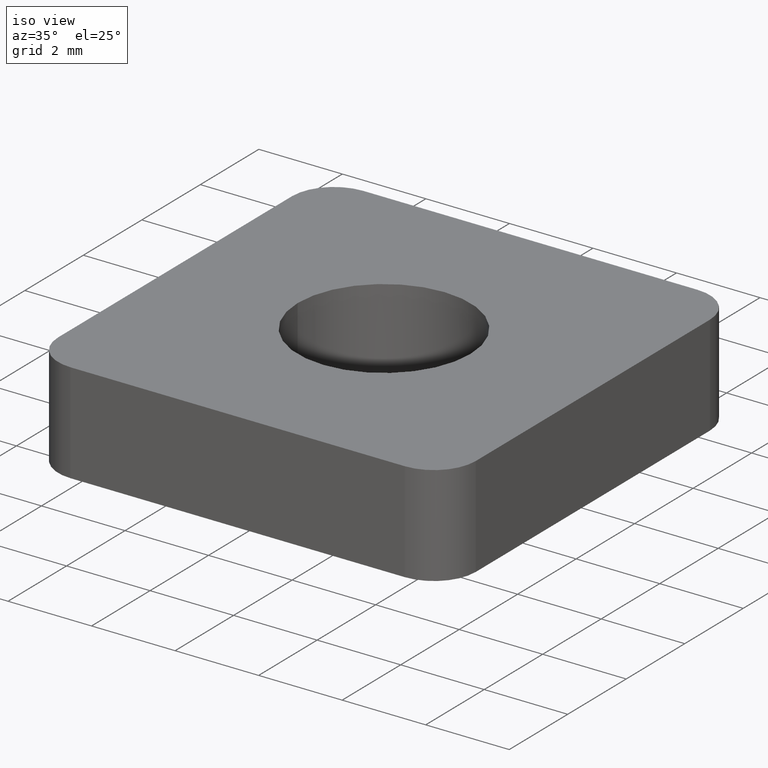
[diagram: clean part render]
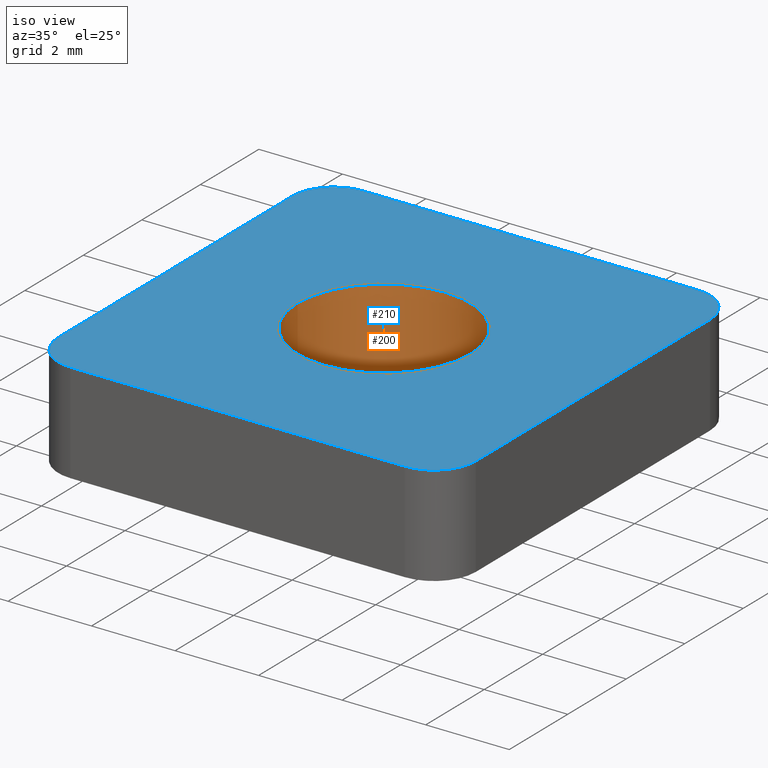
[diagram: same view with the hole feature highlighted: cylindrical wall and planar end face, labeled with their STEP entity ids]
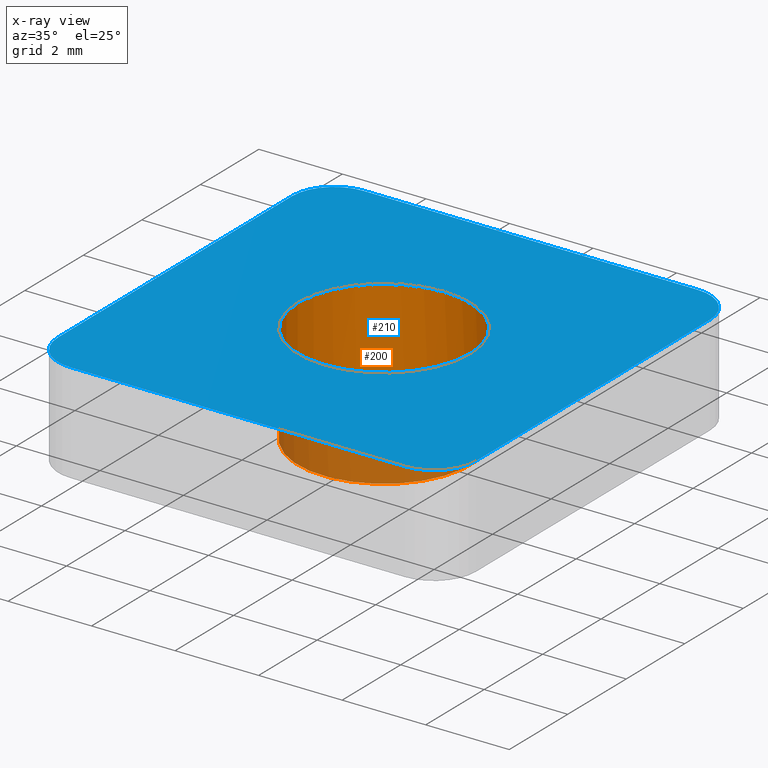
[diagram: x-ray of the same camera — body ghosted, the hole faces saturated]
A machine part, iso view. The highlighted faces form one hole feature of diameter 4.134 mm: the cylindrical wall (entity #200, orange) and its adjacent planar end face (entity #210, blue) — they share a circular edge in the B-rep.
The next image is the same camera in x-ray (body ghosted, the hole faces saturated) — the bore reads through the body.
Wall:
#23=FACE_OUTER_BOUND('',#34,.T.);
#34=EDGE_LOOP('',(#139,#140,#141,#142,#143));
#47=LINE('',#323,#64);
#64=VECTOR('',#261,2.067);
#81=CIRCLE('',#232,2.067);
#82=CIRCLE('',#233,2.067);
#83=CIRCLE('',#234,2.067);
#92=VERTEX_POINT('',#318);
#93=VERTEX_POINT('',#319);
#94=VERTEX_POINT('',#322);
#111=EDGE_CURVE('',#92,#93,#81,.T.);
#112=EDGE_CURVE('',#93,#92,#82,.T.);
#113=EDGE_CURVE('',#93,#94,#47,.T.);
#114=EDGE_CURVE('',#94,#94,#83,.T.);
#139=ORIENTED_EDGE('',*,*,#111,.F.);
#140=ORIENTED_EDGE('',*,*,#112,.F.);
#141=ORIENTED_EDGE('',*,*,#113,.T.);
#142=ORIENTED_EDGE('',*,*,#114,.F.);
#143=ORIENTED_EDGE('',*,*,#113,.F.);
#195=CYLINDRICAL_SURFACE('',#231,2.067);
#200=ADVANCED_FACE('',(#23),#195,.F.);
#231=AXIS2_PLACEMENT_3D('',#317,#255,#256);
#232=AXIS2_PLACEMENT_3D('',#320,#257,#258);
#233=AXIS2_PLACEMENT_3D('',#321,#259,#260);
#234=AXIS2_PLACEMENT_3D('',#324,#262,#263);
#255=DIRECTION('center_axis',(0.,0.,1.));
#256=DIRECTION('ref_axis',(1.,0.,0.));
#257=DIRECTION('center_axis',(0.,0.,-1.));
#258=DIRECTION('ref_axis',(1.,0.,0.));
#259=DIRECTION('center_axis',(0.,0.,-1.));
#260=DIRECTION('ref_axis',(1.,0.,0.));
#261=DIRECTION('',(0.,0.,-1.));
#262=DIRECTION('center_axis',(0.,0.,1.));
#263=DIRECTION('ref_axis',(1.,0.,0.));
#317=CARTESIAN_POINT('Origin',(-3.33066907387547E-15,0.,-14.3443368616329));
#318=CARTESIAN_POINT('',(2.067,0.,0.));
#319=CARTESIAN_POINT('',(-2.067,-2.53134493383758E-16,0.));
#320=CARTESIAN_POINT('Origin',(-3.33066907387547E-15,0.,0.));
#321=CARTESIAN_POINT('Origin',(-3.33066907387547E-15,0.,0.));
#322=CARTESIAN_POINT('',(-2.067,-2.53134493383758E-16,-2.4));
#323=CARTESIAN_POINT('',(-2.067,-2.53134493383758E-16,-14.3443368616329));
#324=CARTESIAN_POINT('Origin',(-3.33066907387547E-15,0.,-2.4));
End face:
#16=FACE_BOUND('',#46,.T.);
#22=PLANE('',#252);
#33=FACE_OUTER_BOUND('',#45,.T.);
#45=EDGE_LOOP('',(#185,#186,#187,#188,#189,#190,#191,#192));
#46=EDGE_LOOP('',(#193,#194));
#52=LINE('',#339,#69);
#58=LINE('',#360,#75);
#62=LINE('',#369,#79);
#63=LINE('',#373,#80);
#69=VECTOR('',#276,8.);
#75=VECTOR('',#296,8.);
#79=VECTOR('',#306,7.99999999999989);
#80=VECTOR('',#313,7.99999999999989);
#81=CIRCLE('',#232,2.067);
#82=CIRCLE('',#233,2.067);
#84=CIRCLE('',#236,1.);
#89=CIRCLE('',#244,1.);
#90=CIRCLE('',#247,1.);
#91=CIRCLE('',#250,1.);
#92=VERTEX_POINT('',#318);
#93=VERTEX_POINT('',#319);
#95=VERTEX_POINT('',#326);
#96=VERTEX_POINT('',#327);
#100=VERTEX_POINT('',#337);
#106=VERTEX_POINT('',#353);
#107=VERTEX_POINT('',#354);
#108=VERTEX_POINT('',#359);
#109=VERTEX_POINT('',#363);
#110=VERTEX_POINT('',#367);
#111=EDGE_CURVE('',#92,#93,#81,.T.);
#112=EDGE_CURVE('',#93,#92,#82,.T.);
#115=EDGE_CURVE('',#95,#96,#84,.T.);
#121=EDGE_CURVE('',#95,#100,#52,.T.);
#128=EDGE_CURVE('',#106,#107,#89,.T.);
#131=EDGE_CURVE('',#108,#107,#58,.T.);
#134=EDGE_CURVE('',#109,#108,#90,.T.);
#136=EDGE_CURVE('',#110,#109,#62,.T.);
#137=EDGE_CURVE('',#100,#110,#91,.T.);
#138=EDGE_CURVE('',#106,#96,#63,.T.);
#185=ORIENTED_EDGE('',*,*,#115,.F.);
#186=ORIENTED_EDGE('',*,*,#121,.T.);
#187=ORIENTED_EDGE('',*,*,#137,.T.);
#188=ORIENTED_EDGE('',*,*,#136,.T.);
#189=ORIENTED_EDGE('',*,*,#134,.T.);
#190=ORIENTED_EDGE('',*,*,#131,.T.);
#191=ORIENTED_EDGE('',*,*,#128,.F.);
#192=ORIENTED_EDGE('',*,*,#138,.T.);
#193=ORIENTED_EDGE('',*,*,#111,.T.);
#194=ORIENTED_EDGE('',*,*,#112,.T.);
#210=ADVANCED_FACE('',(#33,#16),#22,.T.);
#232=AXIS2_PLACEMENT_3D('',#320,#257,#258);
#233=AXIS2_PLACEMENT_3D('',#321,#259,#260);
#236=AXIS2_PLACEMENT_3D('',#328,#266,#267);
#244=AXIS2_PLACEMENT_3D('',#355,#290,#291);
#247=AXIS2_PLACEMENT_3D('',#365,#301,#302);
#250=AXIS2_PLACEMENT_3D('',#371,#309,#310);
#252=AXIS2_PLACEMENT_3D('',#374,#314,#315);
#257=DIRECTION('center_axis',(0.,0.,-1.));
#258=DIRECTION('ref_axis',(1.,0.,0.));
#259=DIRECTION('center_axis',(0.,0.,-1.));
#260=DIRECTION('ref_axis',(1.,0.,0.));
#266=DIRECTION('center_axis',(0.,0.,-1.));
#267=DIRECTION('ref_axis',(-0.707106781186547,-0.707106781186548,0.));
#276=DIRECTION('',(1.,0.,0.));
#290=DIRECTION('center_axis',(0.,0.,-1.));
#291=DIRECTION('ref_axis',(-0.707106781186548,0.707106781186547,0.));
#296=DIRECTION('',(-1.,0.,0.));
#301=DIRECTION('center_axis',(0.,0.,1.));
#302=DIRECTION('ref_axis',(1.,0.,0.));
#306=DIRECTION('',(0.,1.,0.));
#309=DIRECTION('center_axis',(0.,0.,1.));
#310=DIRECTION('ref_axis',(1.,0.,0.));
#313=DIRECTION('',(0.,-1.,0.));
#314=DIRECTION('center_axis',(0.,0.,1.));
#315=DIRECTION('ref_axis',(1.,0.,0.));
#318=CARTESIAN_POINT('',(2.067,0.,0.));
#319=CARTESIAN_POINT('',(-2.067,-2.53134493383758E-16,0.));
#320=CARTESIAN_POINT('Origin',(-3.33066907387547E-15,0.,0.));
#321=CARTESIAN_POINT('Origin',(-3.33066907387547E-15,0.,0.));
#326=CARTESIAN_POINT('',(-4.,-5.,0.));
#327=CARTESIAN_POINT('',(-5.,-4.,0.));
#328=CARTESIAN_POINT('Origin',(-4.,-4.,0.));
#337=CARTESIAN_POINT('',(4.,-4.99999999999988,0.));
#339=CARTESIAN_POINT('',(-4.,-5.,0.));
#353=CARTESIAN_POINT('',(-5.,4.,0.));
#354=CARTESIAN_POINT('',(-4.,5.,0.));
#355=CARTESIAN_POINT('Origin',(-4.,4.,0.));
#359=CARTESIAN_POINT('',(4.,5.,0.));
#360=CARTESIAN_POINT('',(4.,5.,0.));
#363=CARTESIAN_POINT('',(5.,4.,0.));
#365=CARTESIAN_POINT('Origin',(4.,4.,0.));
#367=CARTESIAN_POINT('',(5.,-3.99999999999989,0.));
#369=CARTESIAN_POINT('',(5.,8.50000000000011,0.));
#371=CARTESIAN_POINT('Origin',(4.,-3.99999999999989,0.));
#373=CARTESIAN_POINT('',(-5.,16.4999999999999,0.));
#374=CARTESIAN_POINT('Origin',(-6.00012000264004,6.49987999738437,0.));